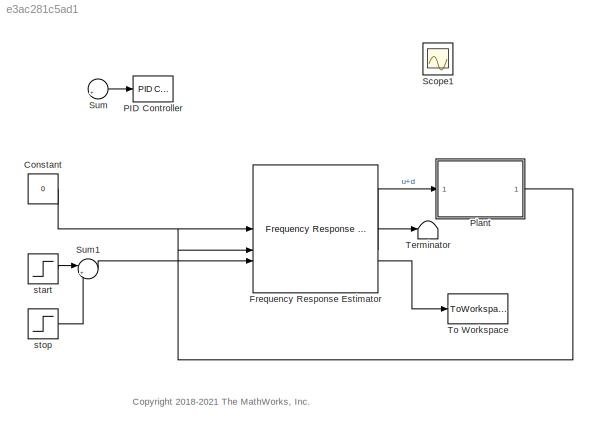
MODEL slx_e3ac281c5ad1
KIND model
CONFIG AbsTol = 1e-3
CONFIG EnableMultiTasking = on
CONFIG FixedStep = auto
CONFIG MaxStep = 0.1
CONFIG MinStep = auto
CONFIG RelTol = 1e-3
CONFIG SampleTimeConstraint = Unconstrained
CONFIG SolverName = VariableStepAuto
CONFIG StartTime = 0.0
CONFIG StopTime = 2000
BLOCK [Constant] Constant
  Value = 0
BLOCK [Reference] Frequency Response Estimator  REF=slctrlblks/Frequency Response Estimator
  SourceBlock = slctrlblks/Frequency Response Estimator
  SourceType = Frequency Response Estimator
BLOCK [Reference] PID Controller  REF=slpidlib/PID Controller
  Commented = on
  SourceBlock = slpidlib/PID Controller
  SourceType = PID 1dof
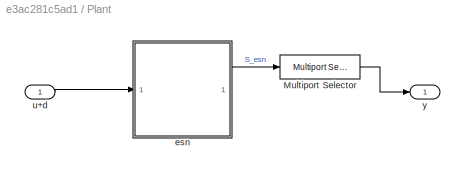
BLOCK [SubSystem] Plant
BLOCK [Reference] Plant/Multiport Selector  REF=dspindex/Multiport
Selector
  SourceBlock = dspindex/Multiport\nSelector
  SourceType = Multiport Selector
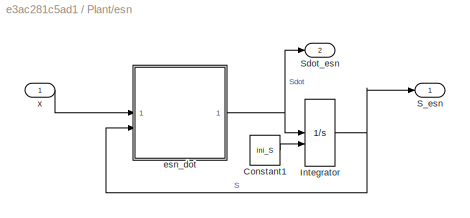
BLOCK [SubSystem] Plant/esn
BLOCK [Constant] Plant/esn/Constant1
  Value = ini_S
  VectorParams1D = off
BLOCK [Integrator] Plant/esn/Integrator
  InitialConditionSource = external
BLOCK [Outport] Plant/esn/S_esn
BLOCK [Outport] Plant/esn/Sdot_esn
  Port = 2
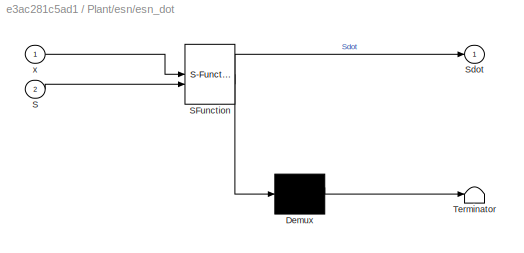
BLOCK [SubSystem] Plant/esn/esn_dot
  ErrorFcn = Stateflow.Translate.translate
  LibrarySourceBlock = simulink/User-Defined\nFunctions/MATLAB Function
  PermitHierarchicalResolution = ExplicitOnly
  SFBlockType = MATLAB Function
  TreatAsAtomicUnit = on
BLOCK [Demux] Plant/esn/esn_dot/ Demux 
  Outputs = 1
BLOCK [S-Function] Plant/esn/esn_dot/ SFunction 
  EnableBusSupport = on
  FunctionName = sf_sfun
  Parameters = Nr,Wb,Win,Wr,nodenuminput,sizeinput,tau
  PortCounts = [2 2]
  SFcnIsStateOwnerBlock = off
  SFunctionDeploymentMode = off
  Tag = Stateflow S-Function 2
BLOCK [Terminator] Plant/esn/esn_dot/ Terminator 
BLOCK [Inport] Plant/esn/esn_dot/S
  Port = 2
BLOCK [Outport] Plant/esn/esn_dot/Sdot
BLOCK [Inport] Plant/esn/esn_dot/x
BLOCK [Inport] Plant/esn/x
BLOCK [Inport] Plant/u+d
BLOCK [Outport] Plant/y
  VectorParamsAs1DForOutWhenUnconnected = off
BLOCK [Scope] Scope1
  Floating = off
  IOType = viewer
  NumInputPorts = 1
  ScopeSpecificationString = Simulink.scopes.TimeScopeBlockCfg('CurrentConfiguration', extmgr.ConfigurationSet(extmgr.Configuration('Core','General UI',true),extmgr.Configuration('Core','Source UI',true),extmgr.Configuration('Sources','WiredSimulink',true,'DataLoggingVariableName','ScopeData1'),extmgr.Configuration('Visuals','Time Domain',true,'SerializedDisplays',{struct('MinYLimReal','-3.17228','MaxYLimReal','113.55054','YL...<+2739ch>
BLOCK [Sum] Sum
  Commented = on
  Inputs = |+-
BLOCK [Sum] Sum1
  Inputs = |++
BLOCK [Terminator] Terminator
BLOCK [ToWorkspace] To Workspace
  FixptAsFi = on
  MaxDataPoints = 1
  SampleTime = -1
  VariableName = frdata
BLOCK [Step] start
  SampleTime = 0
  Time = 200
BLOCK [Step] stop
  After = -1
  SampleTime = 0
  Time = 2000
ANNOTATION (root): <copyright redacted>
LINE Constant:1 -> Frequency Response Estimator:1
LINE Frequency Response Estimator:1 -> Plant:1
LINE Frequency Response Estimator:2 -> Terminator:1
LINE Frequency Response Estimator:3 -> To Workspace:1
LINE Plant/Multiport Selector:1 -> Plant/y:1
LINE Plant/esn/Constant1:1 -> Plant/esn/Integrator:2
NET Plant/esn/Integrator:1 -> Plant/esn/S_esn:1, Plant/esn/esn_dot:2
NET Plant/esn/esn_dot:1 -> Plant/esn/Integrator:1, Plant/esn/Sdot_esn:1
LINE Plant/esn/x:1 -> Plant/esn/esn_dot:1
LINE Plant/esn:1 -> Plant/Multiport Selector:1
LINE Plant/u+d:1 -> Plant/esn:1
LINE Plant:1 -> Frequency Response Estimator:2
LINE Sum1:1 -> Frequency Response Estimator:3
LINE Sum:1 -> PID Controller:1
LINE start:1 -> Sum1:1
LINE stop:1 -> Sum1:2
note: NET lines group one-source signal fan-out (src -> all destinations, sorted); 1:1 wires keep LINE
CHART Plant/esn/esn_dot states=1 transitions=1
  STATE_LABEL 'eML_blk_kernel()'
  STATE_LABEL 'SCRIPT:\nfunction Sdot = fcn(x, S, Nr, sizeinput, nodenuminput, Win, Wr, Wb, tau)\n\nu = zeros(Nr, 1);\nfor j = 1:sizeinput\n    u(j:(j+nodenuminput-1)) = x(j,1);\nend\n\nSdot = (-S + tanh(Win.*u + Wr*S + Wb))/tau;\n'
CHART  states=0 transitions=0
